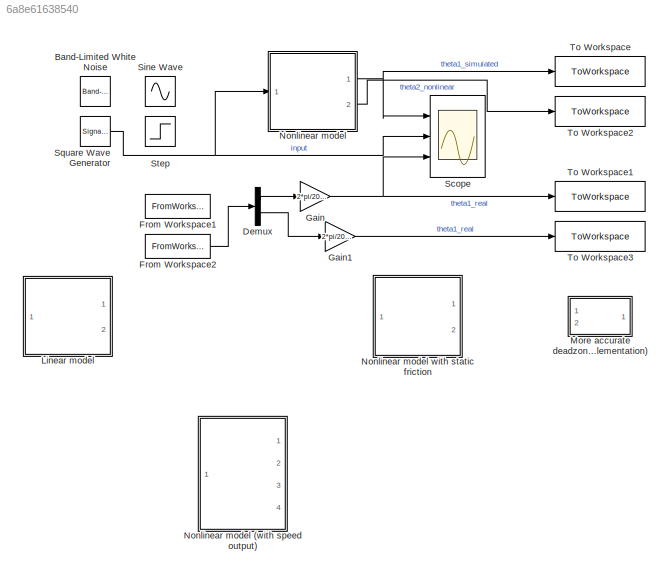
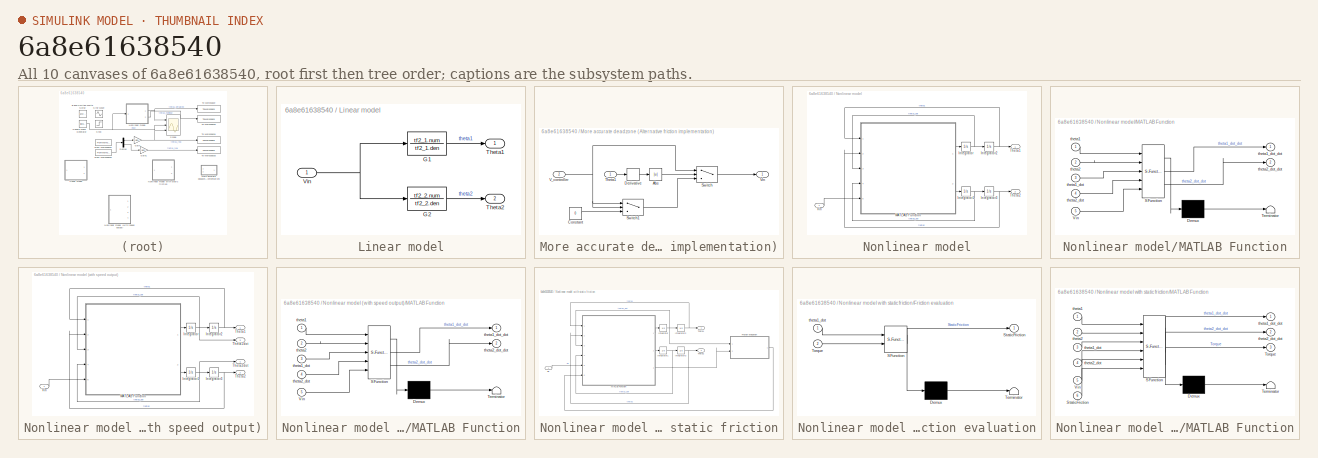
[diagram: thumbnail index - all 10 canvases of the model, root first then tree order]
MODEL slx_6a8e61638540
KIND model
CONFIG AbsTol = auto
CONFIG EnableMultiTasking = off
CONFIG FixedStep = auto
CONFIG MaxStep = auto
CONFIG MinStep = auto
CONFIG RelTol = 1e-3
CONFIG SampleTimeConstraint = Unconstrained
CONFIG Solver = VariableStepAuto
CONFIG SolverName = VariableStepAuto
CONFIG StartTime = 0.0
CONFIG StopTime = 11
BLOCK [Reference] Band-Limited White Noise  REF=simulink/Sources/Band-Limited
White Noise
  Ports = [0, 1]
  SourceBlock = simulink/Sources/Band-Limited\nWhite Noise
  SourceProductBaseCode = SL
  SourceProductName = Simulink
  SourceType = Band-Limited White Noise.
BLOCK [Demux] Demux
  DisplayOption = bar
  Outputs = 2
  Ports = [1, 2]
BLOCK [FromWorkspace] From Workspace1
  SampleTime = 0
  VariableName = tsVstep
  ZeroCross = on
BLOCK [FromWorkspace] From Workspace2
  SampleTime = 0
  VariableName = tsVsw
  ZeroCross = on
BLOCK [Gain] Gain
  Gain = 2*pi/2048
  OutDataTypeStr = Inherit: Inherit via internal rule
  ParamDataTypeStr = Inherit: Inherit via internal rule
  SaturateOnIntegerOverflow = off
BLOCK [Gain] Gain1
  Gain = 2*pi/2048
  OutDataTypeStr = Inherit: Inherit via internal rule
  ParamDataTypeStr = Inherit: Inherit via internal rule
  SaturateOnIntegerOverflow = off
BLOCK [SubSystem] Linear model
  Commented = on
  Ports = [1, 2]
  RequestExecContextInheritance = off
BLOCK [TransferFcn] Linear model/G1
  Denominator = tf2_1.den
  Numerator = tf2_1.num
BLOCK [TransferFcn] Linear model/G2
  Denominator = tf2_2.den
  Numerator = tf2_2.num
BLOCK [Outport] Linear model/Theta1
  IconDisplay = Port number
BLOCK [Outport] Linear model/Theta2
  IconDisplay = Port number
  Port = 2
BLOCK [Inport] Linear model/Vin
  IconDisplay = Port number
BLOCK [SubSystem] More accurate deadzone (Alternative friction implementation)
  Commented = on
  Ports = [2, 1]
  RequestExecContextInheritance = off
BLOCK [Abs] More accurate deadzone (Alternative friction implementation)/Abs
  SaturateOnIntegerOverflow = off
BLOCK [Constant] More accurate deadzone (Alternative friction implementation)/Constant
  Value = 0
BLOCK [Derivative] More accurate deadzone (Alternative friction implementation)/Derivative
BLOCK [Switch] More accurate deadzone (Alternative friction implementation)/Switch
  Criteria = u2 > Threshold
  InputSameDT = off
  SaturateOnIntegerOverflow = off
  Threshold = 0.2
BLOCK [Switch] More accurate deadzone (Alternative friction implementation)/Switch1
  Criteria = u2 > Threshold
  InputSameDT = off
  SaturateOnIntegerOverflow = off
  Threshold = 0.2
BLOCK [Inport] More accurate deadzone (Alternative friction implementation)/Theta1
  IconDisplay = Port number
BLOCK [Inport] More accurate deadzone (Alternative friction implementation)/V_controller
  IconDisplay = Port number
  Port = 2
BLOCK [Outport] More accurate deadzone (Alternative friction implementation)/Vin
  IconDisplay = Port number
BLOCK [SubSystem] Nonlinear model
  Ports = [1, 2]
  RequestExecContextInheritance = off
BLOCK [SubSystem] Nonlinear model (with speed output)
  Commented = on
  Ports = [1, 4]
  RequestExecContextInheritance = off
BLOCK [Integrator] Nonlinear model (with speed output)/Integrator
  Ports = [1, 1]
BLOCK [Integrator] Nonlinear model (with speed output)/Integrator1
  Ports = [1, 1]
BLOCK [Integrator] Nonlinear model (with speed output)/Integrator2
  Ports = [1, 1]
BLOCK [Integrator] Nonlinear model (with speed output)/Integrator3
  Ports = [1, 1]
BLOCK [SubSystem] Nonlinear model (with speed output)/MATLAB Function
  ErrorFcn = Stateflow.Translate.translate
  PermitHierarchicalResolution = ExplicitOnly
  Ports = [5, 2]
  RequestExecContextInheritance = off
  SFBlockType = MATLAB Function
  TreatAsAtomicUnit = on
BLOCK [Demux] Nonlinear model (with speed output)/MATLAB Function/ Demux 
  DisplayOption = bar
  Outputs = 1
  Ports = [1, 1]
BLOCK [S-Function] Nonlinear model (with speed output)/MATLAB Function/ SFunction 
  EnableBusSupport = on
  FunctionName = sf_sfun
  Parameters = Pars
  PortCounts = [5 3]
  Ports = [5, 3]
  SFcnIsStateOwnerBlock = off
  SFunctionDeploymentMode = off
  Tag = Stateflow S-Function 4
BLOCK [Terminator] Nonlinear model (with speed output)/MATLAB Function/ Terminator 
BLOCK [Inport] Nonlinear model (with speed output)/MATLAB Function/Vin
  IconDisplay = Port number
  Port = 5
BLOCK [Inport] Nonlinear model (with speed output)/MATLAB Function/theta1
  IconDisplay = Port number
BLOCK [Inport] Nonlinear model (with speed output)/MATLAB Function/theta1_dot
  IconDisplay = Port number
  Port = 3
BLOCK [Outport] Nonlinear model (with speed output)/MATLAB Function/theta1_dot_dot
  IconDisplay = Port number
BLOCK [Inport] Nonlinear model (with speed output)/MATLAB Function/theta2
  IconDisplay = Port number
  Port = 2
BLOCK [Inport] Nonlinear model (with speed output)/MATLAB Function/theta2_dot
  IconDisplay = Port number
  Port = 4
BLOCK [Outport] Nonlinear model (with speed output)/MATLAB Function/theta2_dot_dot
  IconDisplay = Port number
  Port = 2
BLOCK [Outport] Nonlinear model (with speed output)/Theta1
  IconDisplay = Port number
BLOCK [Outport] Nonlinear model (with speed output)/Theta1dot
  IconDisplay = Port number
  Port = 3
BLOCK [Outport] Nonlinear model (with speed output)/Theta2
  IconDisplay = Port number
  Port = 2
BLOCK [Outport] Nonlinear model (with speed output)/Theta2dot
  IconDisplay = Port number
  Port = 4
BLOCK [Inport] Nonlinear model (with speed output)/Vin
  IconDisplay = Port number
BLOCK [SubSystem] Nonlinear model with static friction
  Commented = on
  Ports = [1, 2]
  RequestExecContextInheritance = off
BLOCK [SubSystem] Nonlinear model with static friction/Friction evaluation
  ErrorFcn = Stateflow.Translate.translate
  PermitHierarchicalResolution = ExplicitOnly
  Ports = [2, 1]
  RequestExecContextInheritance = off
  SFBlockType = MATLAB Function
  TreatAsAtomicUnit = on
BLOCK [Demux] Nonlinear model with static friction/Friction evaluation/ Demux 
  Outputs = 1
  Ports = [1, 1]
BLOCK [S-Function] Nonlinear model with static friction/Friction evaluation/ SFunction 
  EnableBusSupport = on
  FunctionName = sf_sfun
  Parameters = AlmostZeroSpeed,DeadzoneSensitivity,Pars
  PortCounts = [2 2]
  Ports = [2, 2]
  SFcnIsStateOwnerBlock = off
  SFunctionDeploymentMode = off
  Tag = Stateflow S-Function 1
BLOCK [Terminator] Nonlinear model with static friction/Friction evaluation/ Terminator 
BLOCK [Outport] Nonlinear model with static friction/Friction evaluation/StaticFriction
  IconDisplay = Port number
BLOCK [Inport] Nonlinear model with static friction/Friction evaluation/Torque
  IconDisplay = Port number
  Port = 2
BLOCK [Inport] Nonlinear model with static friction/Friction evaluation/theta1_dot
  IconDisplay = Port number
BLOCK [Integrator] Nonlinear model with static friction/Integrator
  Ports = [1, 1]
BLOCK [Integrator] Nonlinear model with static friction/Integrator1
  Ports = [1, 1]
BLOCK [Integrator] Nonlinear model with static friction/Integrator2
  Ports = [1, 1]
BLOCK [Integrator] Nonlinear model with static friction/Integrator3
  Ports = [1, 1]
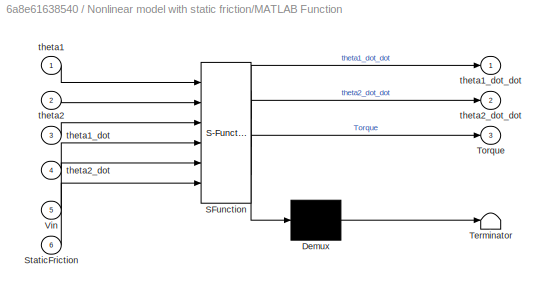
BLOCK [SubSystem] Nonlinear model with static friction/MATLAB Function
  ErrorFcn = Stateflow.Translate.translate
  PermitHierarchicalResolution = ExplicitOnly
  Ports = [6, 3]
  RequestExecContextInheritance = off
  SFBlockType = MATLAB Function
  TreatAsAtomicUnit = on
BLOCK [Demux] Nonlinear model with static friction/MATLAB Function/ Demux 
  DisplayOption = bar
  Outputs = 1
  Ports = [1, 1]
BLOCK [S-Function] Nonlinear model with static friction/MATLAB Function/ SFunction 
  EnableBusSupport = on
  FunctionName = sf_sfun
  Parameters = Pars
  PortCounts = [6 4]
  Ports = [6, 4]
  SFcnIsStateOwnerBlock = off
  SFunctionDeploymentMode = off
  Tag = Stateflow S-Function 3
BLOCK [Terminator] Nonlinear model with static friction/MATLAB Function/ Terminator 
BLOCK [Inport] Nonlinear model with static friction/MATLAB Function/StaticFriction
  IconDisplay = Port number
  Port = 6
BLOCK [Outport] Nonlinear model with static friction/MATLAB Function/Torque
  IconDisplay = Port number
  Port = 3
BLOCK [Inport] Nonlinear model with static friction/MATLAB Function/Vin
  IconDisplay = Port number
  Port = 5
BLOCK [Inport] Nonlinear model with static friction/MATLAB Function/theta1
  IconDisplay = Port number
BLOCK [Inport] Nonlinear model with static friction/MATLAB Function/theta1_dot
  IconDisplay = Port number
  Port = 3
BLOCK [Outport] Nonlinear model with static friction/MATLAB Function/theta1_dot_dot
  IconDisplay = Port number
BLOCK [Inport] Nonlinear model with static friction/MATLAB Function/theta2
  IconDisplay = Port number
  Port = 2
BLOCK [Inport] Nonlinear model with static friction/MATLAB Function/theta2_dot
  IconDisplay = Port number
  Port = 4
BLOCK [Outport] Nonlinear model with static friction/MATLAB Function/theta2_dot_dot
  IconDisplay = Port number
  Port = 2
BLOCK [Outport] Nonlinear model with static friction/Theta1
  IconDisplay = Port number
BLOCK [Outport] Nonlinear model with static friction/Theta2
  IconDisplay = Port number
  Port = 2
BLOCK [Inport] Nonlinear model with static friction/Vin
  IconDisplay = Port number
BLOCK [Integrator] Nonlinear model/Integrator
  Ports = [1, 1]
BLOCK [Integrator] Nonlinear model/Integrator1
  Ports = [1, 1]
BLOCK [Integrator] Nonlinear model/Integrator2
  Ports = [1, 1]
BLOCK [Integrator] Nonlinear model/Integrator3
  Ports = [1, 1]
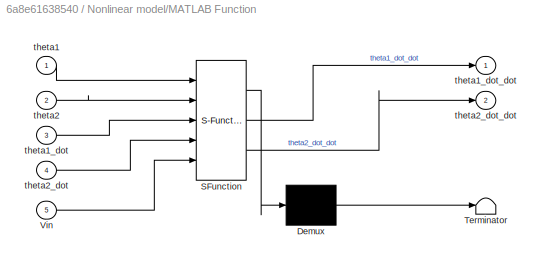
BLOCK [SubSystem] Nonlinear model/MATLAB Function
  ErrorFcn = Stateflow.Translate.translate
  PermitHierarchicalResolution = ExplicitOnly
  Ports = [5, 2]
  RequestExecContextInheritance = off
  SFBlockType = MATLAB Function
  TreatAsAtomicUnit = on
BLOCK [Demux] Nonlinear model/MATLAB Function/ Demux 
  DisplayOption = bar
  Outputs = 1
  Ports = [1, 1]
BLOCK [S-Function] Nonlinear model/MATLAB Function/ SFunction 
  EnableBusSupport = on
  FunctionName = sf_sfun
  Parameters = Pars
  PortCounts = [5 3]
  Ports = [5, 3]
  SFcnIsStateOwnerBlock = off
  SFunctionDeploymentMode = off
  Tag = Stateflow S-Function 2
BLOCK [Terminator] Nonlinear model/MATLAB Function/ Terminator 
BLOCK [Inport] Nonlinear model/MATLAB Function/Vin
  IconDisplay = Port number
  Port = 5
BLOCK [Inport] Nonlinear model/MATLAB Function/theta1
  IconDisplay = Port number
BLOCK [Inport] Nonlinear model/MATLAB Function/theta1_dot
  IconDisplay = Port number
  Port = 3
BLOCK [Outport] Nonlinear model/MATLAB Function/theta1_dot_dot
  IconDisplay = Port number
BLOCK [Inport] Nonlinear model/MATLAB Function/theta2
  IconDisplay = Port number
  Port = 2
BLOCK [Inport] Nonlinear model/MATLAB Function/theta2_dot
  IconDisplay = Port number
  Port = 4
BLOCK [Outport] Nonlinear model/MATLAB Function/theta2_dot_dot
  IconDisplay = Port number
  Port = 2
BLOCK [Outport] Nonlinear model/Theta1
  IconDisplay = Port number
BLOCK [Outport] Nonlinear model/Theta2
  IconDisplay = Port number
  Port = 2
BLOCK [Inport] Nonlinear model/Vin
  IconDisplay = Port number
BLOCK [Scope] Scope
  Floating = off
  NumInputPorts = 3
  Ports = [3]
  ScopeSpecificationString = Simulink.scopes.TimeScopeBlockCfg('CurrentConfiguration', extmgr.ConfigurationSet(extmgr.Configuration('Core','General UI',true,'FigureColor',[1 1 1]),extmgr.Configuration('Core','Source UI',true),extmgr.Configuration('Sources','WiredSimulink',true),extmgr.Configuration('Visuals','Time Domain',true,'SerializedDisplays',{struct('MinYLimReal','-1.70232','MaxYLimReal','1.30026','YLabelReal','','MinYL...<+1912ch>
BLOCK [Sin] Sine Wave
  Frequency = 11
  Ports = [0, 1]
  SampleTime = 0
BLOCK [SignalGenerator] Square Wave Generator
  Ports = [0, 1]
  WaveForm = square
BLOCK [Step] Step
  SampleTime = 0
BLOCK [ToWorkspace] To Workspace
  FixptAsFi = on
  MaxDataPoints = inf
  Ports = [1]
  SampleTime = -1
  Save2DSignal = 2-D array (concatenate along first dimension)
  VariableName = sim1
BLOCK [ToWorkspace] To Workspace1
  FixptAsFi = on
  MaxDataPoints = inf
  Ports = [1]
  SampleTime = -1
  Save2DSignal = 2-D array (concatenate along first dimension)
  VariableName = real1
BLOCK [ToWorkspace] To Workspace2
  FixptAsFi = on
  MaxDataPoints = inf
  Ports = [1]
  SampleTime = -1
  Save2DSignal = 2-D array (concatenate along first dimension)
  VariableName = sim2
BLOCK [ToWorkspace] To Workspace3
  FixptAsFi = on
  MaxDataPoints = inf
  Ports = [1]
  SampleTime = -1
  Save2DSignal = 2-D array (concatenate along first dimension)
  VariableName = real2
LINE Demux:1 -> Gain:1
LINE Demux:2 -> Gain1:1
LINE From Workspace2:1 -> Demux:1
LINE Gain1:1 -> To Workspace3:1
NET Gain:1 -> Scope:3, To Workspace1:1
LINE Linear model/G1:1 -> Linear model/Theta1:1
LINE Linear model/G2:1 -> Linear model/Theta2:1
NET Linear model/Vin:1 -> Linear model/G1:1, Linear model/G2:1
LINE More accurate deadzone (Alternative friction implementation)/Abs:1 -> More accurate deadzone (Alternative friction implementation)/Switch:2
LINE More accurate deadzone (Alternative friction implementation)/Constant:1 -> More accurate deadzone (Alternative friction implementation)/Switch1:3
LINE More accurate deadzone (Alternative friction implementation)/Derivative:1 -> More accurate deadzone (Alternative friction implementation)/Abs:1
LINE More accurate deadzone (Alternative friction implementation)/Switch1:1 -> More accurate deadzone (Alternative friction implementation)/Switch:3
LINE More accurate deadzone (Alternative friction implementation)/Switch:1 -> More accurate deadzone (Alternative friction implementation)/Vin:1
LINE More accurate deadzone (Alternative friction implementation)/Theta1:1 -> More accurate deadzone (Alternative friction implementation)/Derivative:1
NET More accurate deadzone (Alternative friction implementation)/V_controller:1 -> More accurate deadzone (Alternative friction implementation)/Switch1:1, More accurate deadzone (Alternative friction implementation)/Switch1:2, More accurate deadzone (Alternative friction implementation)/Switch:1
NET Nonlinear model (with speed output)/Integrator1:1 -> Nonlinear model (with speed output)/Integrator3:1, Nonlinear model (with speed output)/MATLAB Function:4, Nonlinear model (with speed output)/Theta2dot:1
NET Nonlinear model (with speed output)/Integrator2:1 -> Nonlinear model (with speed output)/MATLAB Function:1, Nonlinear model (with speed output)/Theta1:1
NET Nonlinear model (with speed output)/Integrator3:1 -> Nonlinear model (with speed output)/MATLAB Function:2, Nonlinear model (with speed output)/Theta2:1
NET Nonlinear model (with speed output)/Integrator:1 -> Nonlinear model (with speed output)/Integrator2:1, Nonlinear model (with speed output)/MATLAB Function:3, Nonlinear model (with speed output)/Theta1dot:1
LINE Nonlinear model (with speed output)/MATLAB Function:1 -> Nonlinear model (with speed output)/Integrator:1
LINE Nonlinear model (with speed output)/MATLAB Function:2 -> Nonlinear model (with speed output)/Integrator1:1
LINE Nonlinear model (with speed output)/Vin:1 -> Nonlinear model (with speed output)/MATLAB Function:5
LINE Nonlinear model with static friction/Friction evaluation:1 -> Nonlinear model with static friction/MATLAB Function:6
NET Nonlinear model with static friction/Integrator1:1 -> Nonlinear model with static friction/Integrator3:1, Nonlinear model with static friction/MATLAB Function:4
NET Nonlinear model with static friction/Integrator2:1 -> Nonlinear model with static friction/MATLAB Function:1, Nonlinear model with static friction/Theta1:1
NET Nonlinear model with static friction/Integrator3:1 -> Nonlinear model with static friction/MATLAB Function:2, Nonlinear model with static friction/Theta2:1
NET Nonlinear model with static friction/Integrator:1 -> Nonlinear model with static friction/Friction evaluation:1, Nonlinear model with static friction/Integrator2:1, Nonlinear model with static friction/MATLAB Function:3
LINE Nonlinear model with static friction/MATLAB Function:1 -> Nonlinear model with static friction/Integrator:1
LINE Nonlinear model with static friction/MATLAB Function:2 -> Nonlinear model with static friction/Integrator1:1
LINE Nonlinear model with static friction/MATLAB Function:3 -> Nonlinear model with static friction/Friction evaluation:2
LINE Nonlinear model with static friction/Vin:1 -> Nonlinear model with static friction/MATLAB Function:5
NET Nonlinear model/Integrator1:1 -> Nonlinear model/Integrator3:1, Nonlinear model/MATLAB Function:4
NET Nonlinear model/Integrator2:1 -> Nonlinear model/MATLAB Function:1, Nonlinear model/Theta1:1
NET Nonlinear model/Integrator3:1 -> Nonlinear model/MATLAB Function:2, Nonlinear model/Theta2:1
NET Nonlinear model/Integrator:1 -> Nonlinear model/Integrator2:1, Nonlinear model/MATLAB Function:3
LINE Nonlinear model/MATLAB Function:1 -> Nonlinear model/Integrator:1
LINE Nonlinear model/MATLAB Function:2 -> Nonlinear model/Integrator1:1
LINE Nonlinear model/Vin:1 -> Nonlinear model/MATLAB Function:5
NET Nonlinear model:1 -> Scope:1, To Workspace:1
LINE Nonlinear model:2 -> To Workspace2:1
NET Square Wave Generator:1 -> Nonlinear model:1, Scope:2
note: NET lines group one-source signal fan-out (src -> all destinations, sorted); 1:1 wires keep LINE
CHART Nonlinear model with static friction/Friction evaluation states=1 transitions=1
  STATE_LABEL 'eML_blk_kernel()'
  STATE_LABEL 'SCRIPT:\nfunction StaticFriction = fcn(theta1_dot, Torque, Pars, DeadzoneSensitivity, AlmostZeroSpeed)\n\n%the static friction has a maximum value, then decreases towards 0 as the\n%speed approaches AlmostZeroSpeed. After it is zero.\nif abs(theta1_dot) <= AlmostZeroSpeed \n    MaxFriction = min(Torque, Pars.Km/Pars.Rm*(DeadzoneSensitivity-Pars.Km*theta1_dot));\n    MaxFriction = max(MaxFriction, 0); %To...<+184ch>'
CHART Nonlinear model/MATLAB Function states=1 transitions=1
  STATE_LABEL 'eML_blk_kernel()'
  STATE_LABEL 'SCRIPT:\nfunction [theta1_dot_dot,theta2_dot_dot] = fcn(theta1, theta2, theta1_dot, theta2_dot,Vin, Pars)\n\n   k1 = Pars.Jeq + Pars.m2*(Pars.l1^2 + Pars.x2^2*sin(theta2)^2);\n   k2 = Pars.m2*Pars.l1*Pars.x2*cos(theta2);\n   k3 = 2*Pars.m2*Pars.x2^2*sin(theta2)*cos(theta2)*theta1_dot*theta2_dot - Pars.m2*Pars.l1*Pars.x2*sin(theta2)*theta2_dot^2 +Pars.Ks*theta1 - Pars.Km/Pars.Rm*Vin + (Pars.Km^2)/Pars.R...<+346ch>'
CHART Nonlinear model with static friction/MATLAB Function states=1 transitions=1
  STATE_LABEL 'eML_blk_kernel()'
  STATE_LABEL 'SCRIPT:\nfunction [theta1_dot_dot, theta2_dot_dot, Torque] = fcn(theta1, theta2, theta1_dot, theta2_dot, Vin, StaticFriction, Pars)\n\n   k1 = Pars.Jeq + Pars.m2*(Pars.l1^2 + Pars.x2^2*sin(theta2)^2);\n   k2 = Pars.m2*Pars.l1*Pars.x2*cos(theta2);\n   k3 = 2*Pars.m2*Pars.x2^2*sin(theta2)*cos(theta2)*theta1_dot*theta2_dot - Pars.m2*Pars.l1*Pars.x2*sin(theta2)*theta2_dot^2 +Pars.Ks*theta1 - Pars.Km/Pars.R...<+441ch>'
CHART Nonlinear model
(with speed output)/MATLAB Function states=1 transitions=1
  STATE_LABEL 'eML_blk_kernel()'
  STATE_LABEL 'SCRIPT:\nfunction [theta1_dot_dot,theta2_dot_dot] = fcn(theta1, theta2, theta1_dot, theta2_dot,Vin, Pars)\n\n   k1 = Pars.Jeq + Pars.m2*(Pars.l1^2 + Pars.x2^2*sin(theta2)^2);\n   k2 = Pars.m2*Pars.l1*Pars.x2*cos(theta2);\n   k3 = 2*Pars.m2*Pars.x2^2*sin(theta2)*cos(theta2)*theta1_dot*theta2_dot - Pars.m2*Pars.l1*Pars.x2*sin(theta2)*theta2_dot^2 +Pars.Ks*theta1 - Pars.Km/Pars.Rm*Vin + (Pars.Km^2)/Pars.R...<+346ch>'
